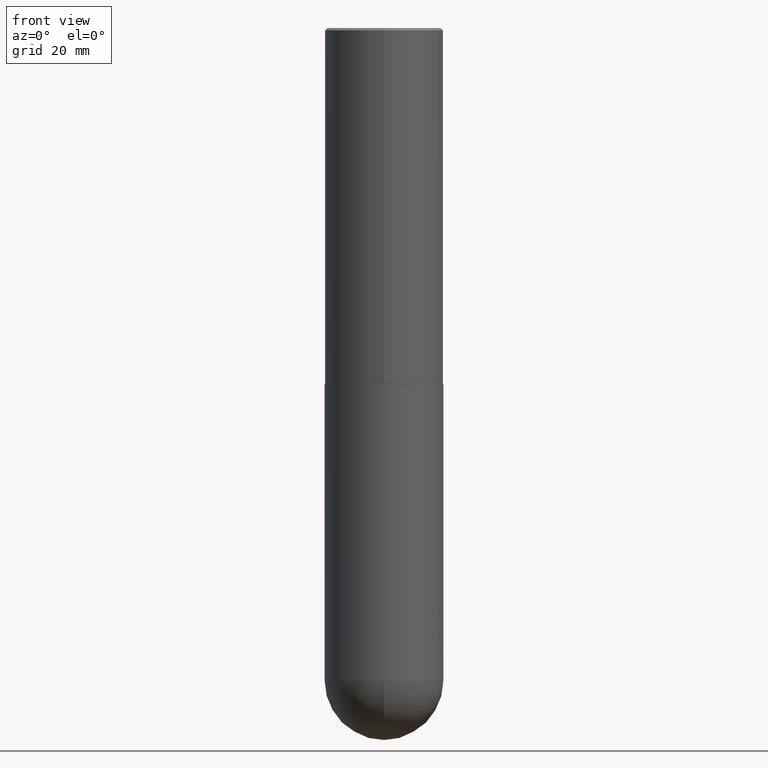
[diagram: clean part render]
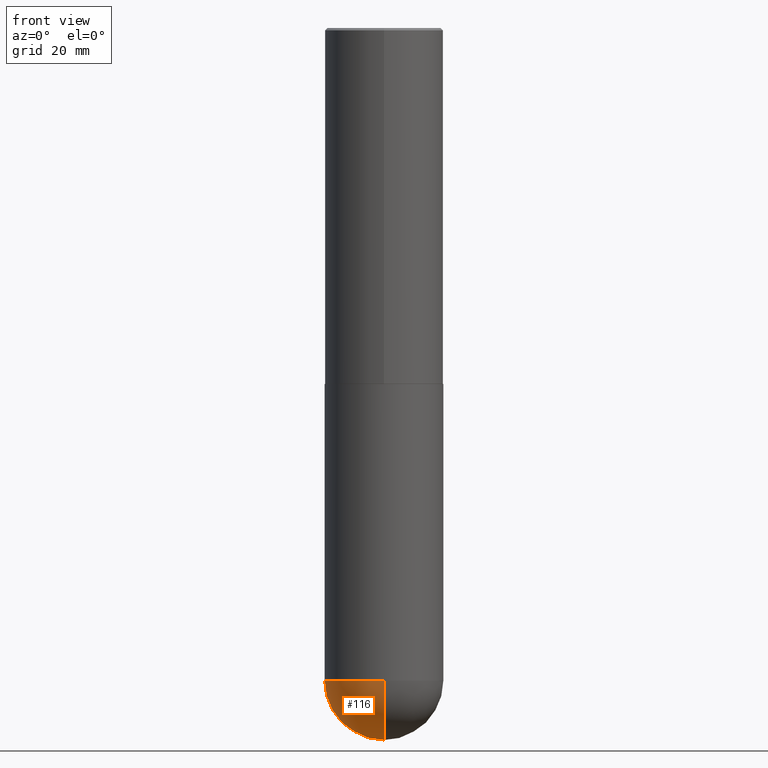
[diagram: same view with one face highlighted and labeled with its STEP entity id]
A machine part, front view. The second image highlights one B-rep face of the part: STEP entity #116.
In plain terms, the highlighted spherical surface has radius 12.7 mm.
Its self-contained STEP definition (entity closure, byte-faithful):
#19 = DIRECTION ( 'NONE',  ( 6.982962677686265922E-15, 1.000000000000000000, -4.370956789862816416E-15 ) ) ;
#24 = ORIENTED_EDGE ( 'NONE', *, *, #170, .F. ) ;
#36 = CARTESIAN_POINT ( 'NONE',  ( 3.491481338843267462E-15, 0.4999999999999808487, -5.500000000000002665 ) ) ;
#42 = EDGE_CURVE ( 'NONE', #62, #159, #321, .T. ) ;
#45 = SPHERICAL_SURFACE ( 'NONE', #332, 0.5000000000000005551 ) ;
#48 = CARTESIAN_POINT ( 'NONE',  ( -0.5000000000000000000, -1.128608201128287263E-14, -5.500000000000000888 ) ) ;
#50 = DIRECTION ( 'NONE',  ( -2.445468806185136597E-29, 3.491481338843145583E-15, 1.000000000000000000 ) ) ;
#51 = EDGE_CURVE ( 'NONE', #65, #159, #201, .T. ) ;
#55 = AXIS2_PLACEMENT_3D ( 'NONE', #178, #342, #251 ) ;
#62 = VERTEX_POINT ( 'NONE', #48 ) ;
#65 = VERTEX_POINT ( 'NONE', #296 ) ;
#74 = AXIS2_PLACEMENT_3D ( 'NONE', #179, #50, #326 ) ;
#104 = CIRCLE ( 'NONE', #378, 0.5000000000000000000 ) ;
#112 = FACE_OUTER_BOUND ( 'NONE', #208, .T. ) ;
#116 = ADVANCED_FACE ( 'NONE', ( #112 ), #45, .T. ) ;
#133 = AXIS2_PLACEMENT_3D ( 'NONE', #146, #156, #387 ) ;
#146 = CARTESIAN_POINT ( 'NONE',  ( 1.311895865610436840E-28, -1.967732973177735475E-14, -5.500000000000000888 ) ) ;
#147 = CIRCLE ( 'NONE', #133, 0.5000000000000005551 ) ;
#156 = DIRECTION ( 'NONE',  ( 1.000000000000000000, -6.982962677686265922E-15, 4.883557194083112340E-29 ) ) ;
#159 = VERTEX_POINT ( 'NONE', #277 ) ;
#161 = DIRECTION ( 'NONE',  ( -2.445468806185136597E-29, 3.491481338843145583E-15, 1.000000000000000000 ) ) ;
#170 = EDGE_CURVE ( 'NONE', #65, #314, #147, .T. ) ;
#178 = CARTESIAN_POINT ( 'NONE',  ( 1.311895865610436840E-28, -1.967732973177735475E-14, -5.500000000000000888 ) ) ;
#179 = CARTESIAN_POINT ( 'NONE',  ( 1.345007843401825128E-28, -1.920314736363730603E-14, -5.500000000000000888 ) ) ;
#184 = ORIENTED_EDGE ( 'NONE', *, *, #394, .F. ) ;
#186 = DIRECTION ( 'NONE',  ( -1.000000000000000000, 6.982962677686265922E-15, -4.883557194083112901E-29 ) ) ;
#201 = CIRCLE ( 'NONE', #55, 0.5000000000000005551 ) ;
#208 = EDGE_LOOP ( 'NONE', ( #24, #232, #349, #184 ) ) ;
#228 = CARTESIAN_POINT ( 'NONE',  ( 1.311895865610436840E-28, -1.967732973177735475E-14, -5.500000000000000888 ) ) ;
#232 = ORIENTED_EDGE ( 'NONE', *, *, #51, .T. ) ;
#251 = DIRECTION ( 'NONE',  ( -7.105427357601000281E-15, -1.000000000000000000, 0.000000000000000000 ) ) ;
#259 = CARTESIAN_POINT ( 'NONE',  ( 1.345007843401825128E-28, -1.920314736363730603E-14, -5.500000000000000888 ) ) ;
#275 = DIRECTION ( 'NONE',  ( 1.000000000000000000, -6.982962677686270655E-15, 0.000000000000000000 ) ) ;
#277 = CARTESIAN_POINT ( 'NONE',  ( -3.552713678800369978E-15, -0.5000000000000196509, -5.499999999999999112 ) ) ;
#296 = CARTESIAN_POINT ( 'NONE',  ( 1.436307221642642309E-28, -2.139245423122024710E-14, -6.000000000000001776 ) ) ;
#314 = VERTEX_POINT ( 'NONE', #36 ) ;
#321 = CIRCLE ( 'NONE', #74, 0.5000000000000000000 ) ;
#326 = DIRECTION ( 'NONE',  ( 1.000000000000000000, -6.982962677686270655E-15, 0.000000000000000000 ) ) ;
#332 = AXIS2_PLACEMENT_3D ( 'NONE', #228, #186, #19 ) ;
#342 = DIRECTION ( 'NONE',  ( -1.000000000000000000, 7.105427357601001070E-15, -4.926315508542082329E-29 ) ) ;
#349 = ORIENTED_EDGE ( 'NONE', *, *, #42, .F. ) ;
#378 = AXIS2_PLACEMENT_3D ( 'NONE', #259, #161, #275 ) ;
#387 = DIRECTION ( 'NONE',  ( 6.982962677686265922E-15, 1.000000000000000000, 0.000000000000000000 ) ) ;
#394 = EDGE_CURVE ( 'NONE', #314, #62, #104, .T. ) ;